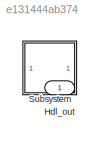
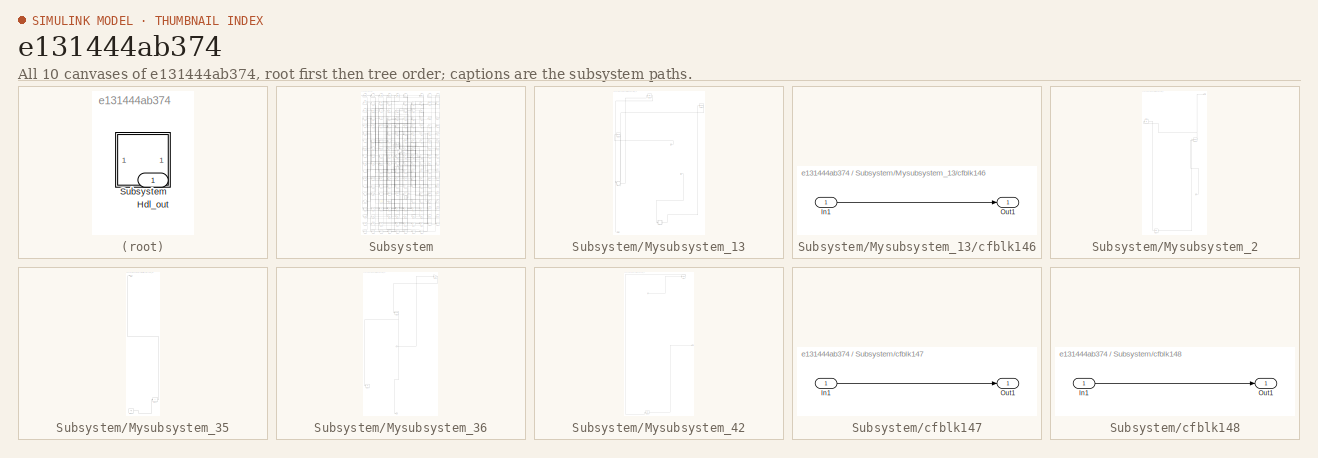
[diagram: thumbnail index - all 10 canvases of the model, root first then tree order]
MODEL slx_e131444ab374
KIND model
CONFIG AbsTol = auto
CONFIG EnableMultiTasking = off
CONFIG FixedStep = auto
CONFIG MaxStep = auto
CONFIG MinStep = auto
CONFIG RelTol = 1e-3
CONFIG SampleTimeConstraint = Unconstrained
CONFIG SolverName = VariableStepAuto
CONFIG StartTime = 0.0
CONFIG StopTime = 10.0
BLOCK [Outport] Hdl_out
  OutDataTypeStr = uint8
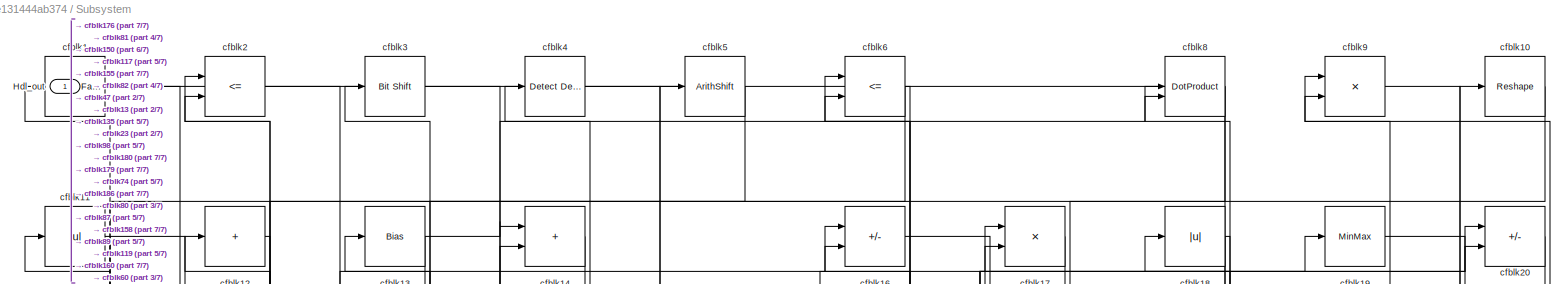
[diagram: Subsystem - part 1/7, full width, top band]
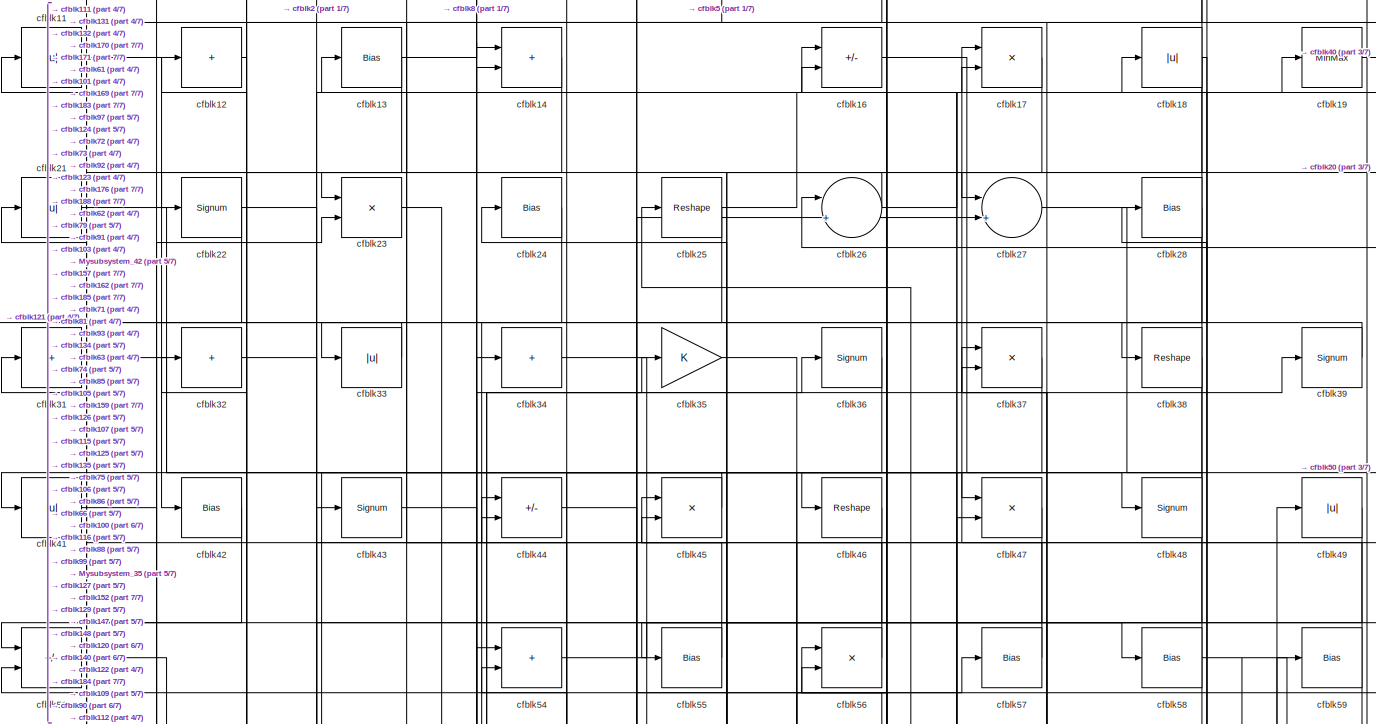
[diagram: Subsystem - part 2/7, full width, top band]
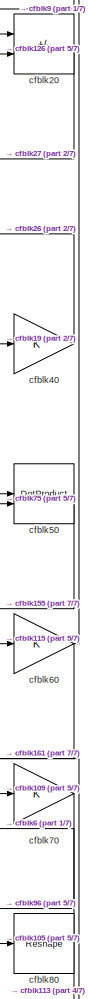
[diagram: Subsystem - part 3/7, top right region]
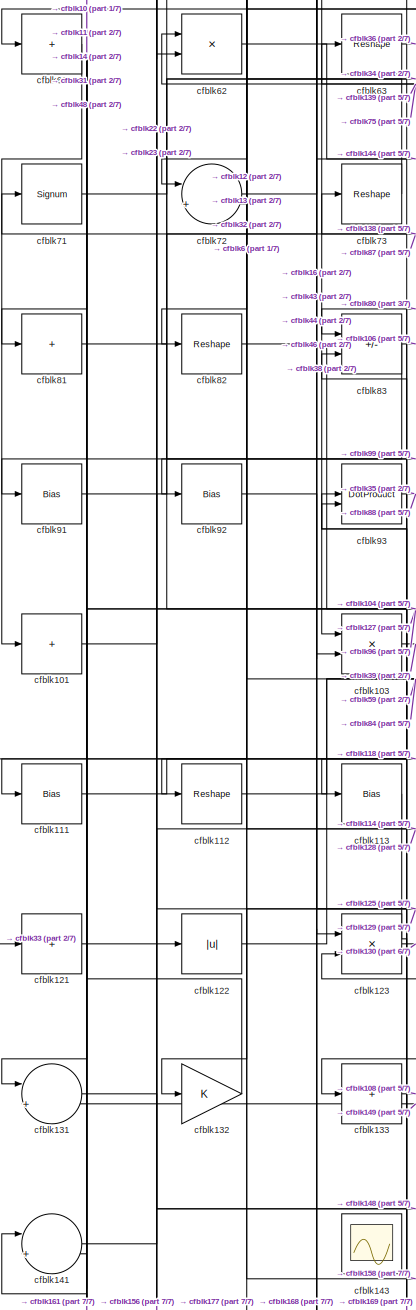
[diagram: Subsystem - part 4/7, middle left region]
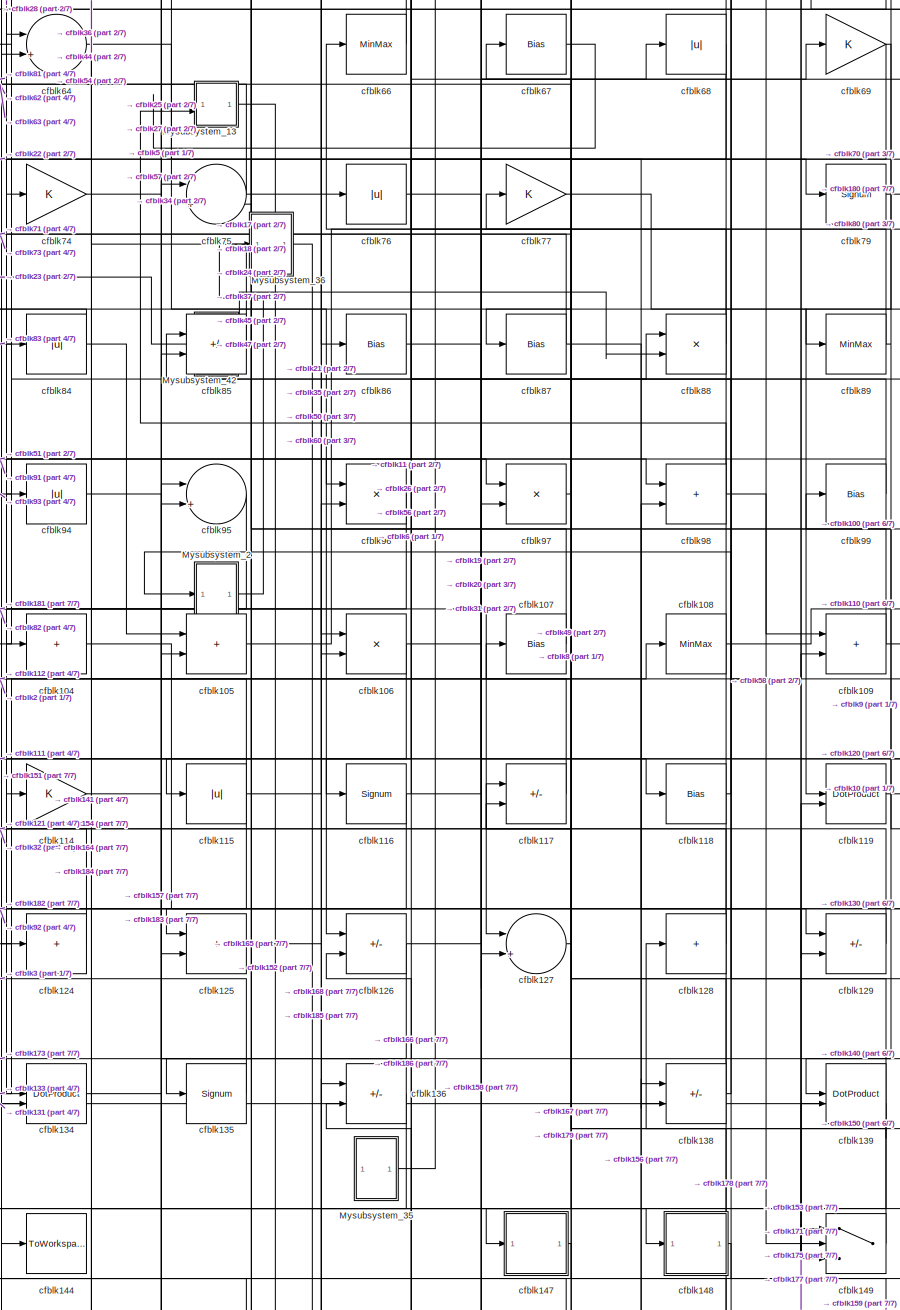
[diagram: Subsystem - part 5/7, central region]
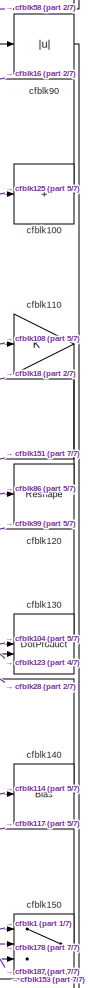
[diagram: Subsystem - part 6/7, middle right region]
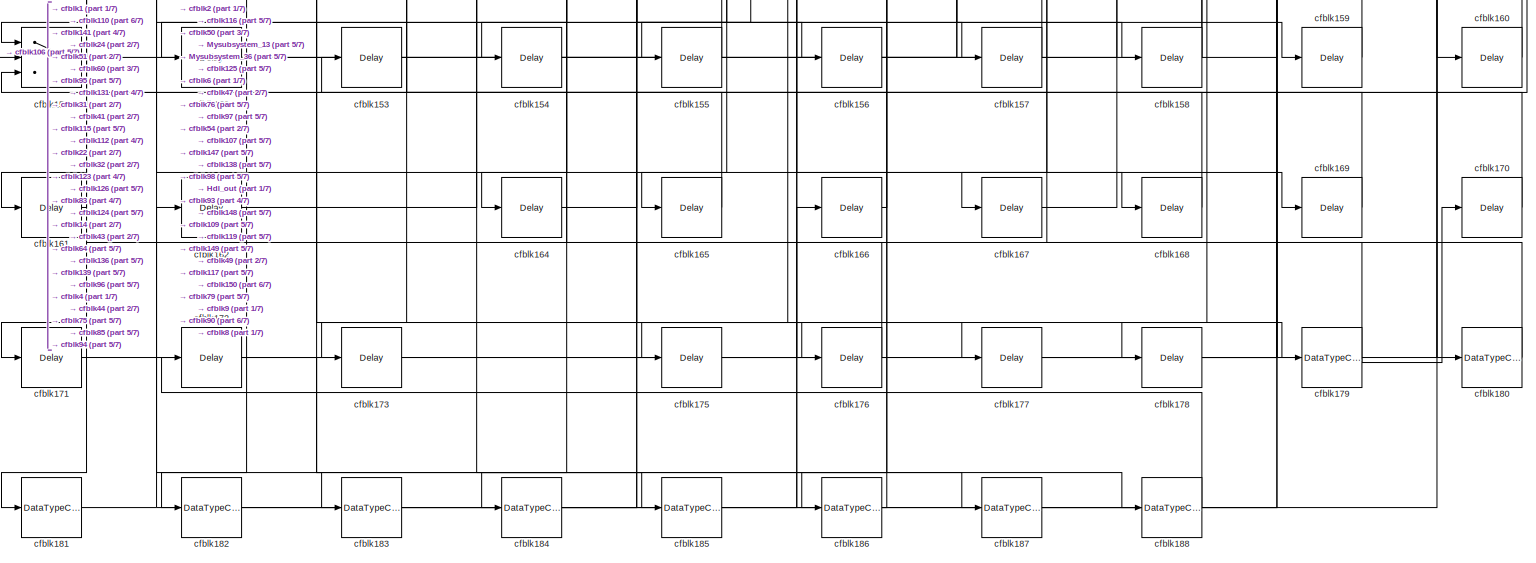
[diagram: Subsystem - part 7/7, full width, bottom band]
BLOCK [SubSystem] Subsystem
BLOCK [Outport] Subsystem/Hdl_out
  OutDataTypeStr = uint8
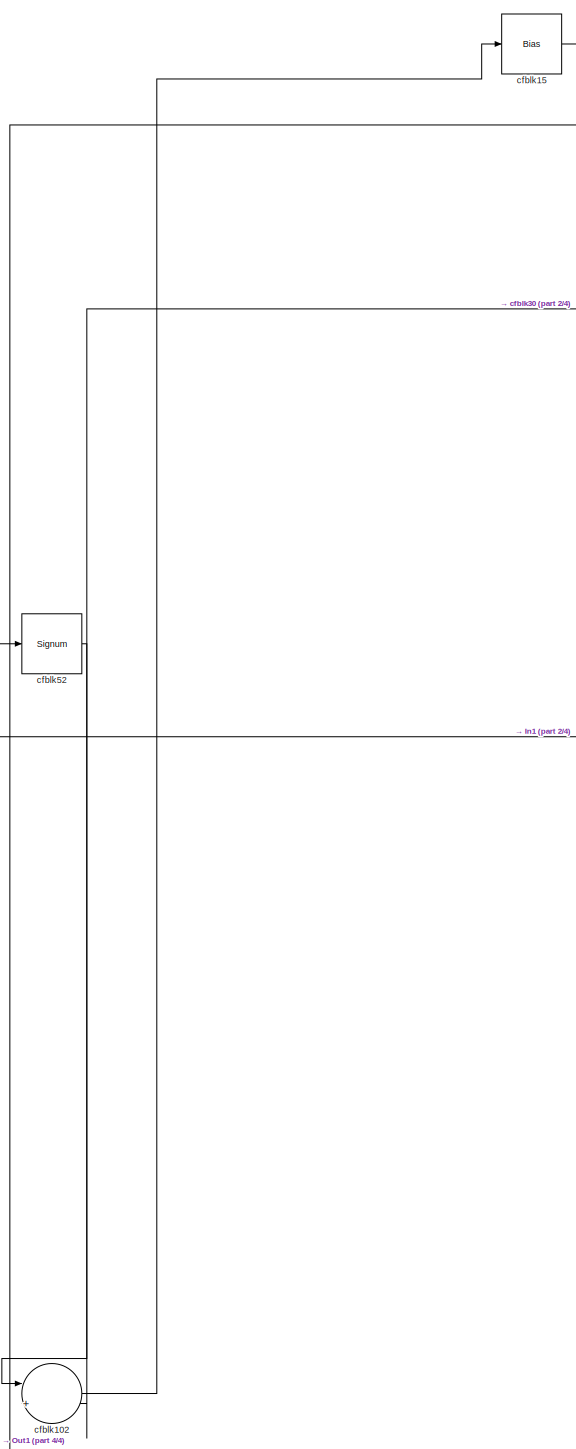
[diagram: Subsystem/Mysubsystem_13 - part 1/4, middle left region]
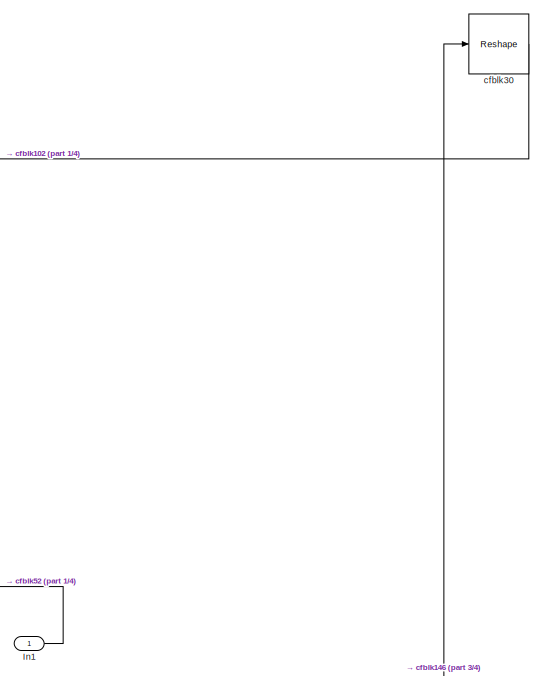
[diagram: Subsystem/Mysubsystem_13 - part 2/4, top right region]
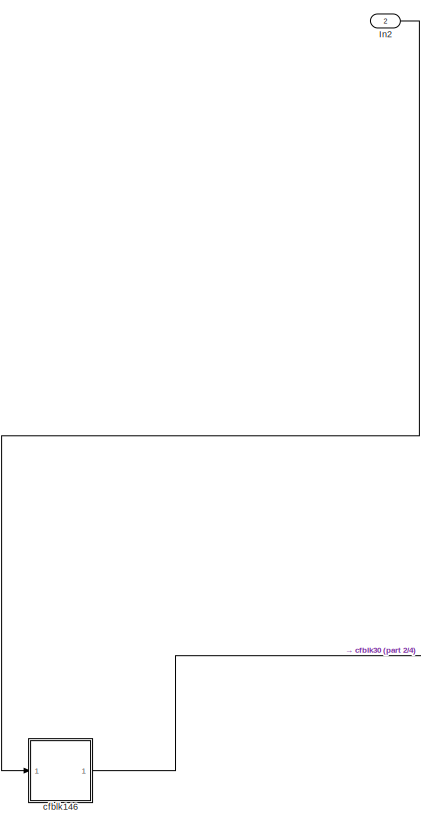
[diagram: Subsystem/Mysubsystem_13 - part 3/4, bottom center region]
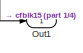
[diagram: Subsystem/Mysubsystem_13 - part 4/4, bottom left region]
BLOCK [SubSystem] Subsystem/Mysubsystem_13
  RTWFcnName = Mysubsystem_13
  RTWFcnNameOpts = User specified
  RTWFileNameOpts = Use function name
  RTWSystemCode = Reusable function
  TreatAsAtomicUnit = on
BLOCK [Inport] Subsystem/Mysubsystem_13/In1
BLOCK [Inport] Subsystem/Mysubsystem_13/In2
  Port = 2
BLOCK [Outport] Subsystem/Mysubsystem_13/Out1
BLOCK [Sum] Subsystem/Mysubsystem_13/cfblk102
  Inputs = |++
BLOCK [SubSystem] Subsystem/Mysubsystem_13/cfblk146
  LibrarySourceBlock = hdlsllib/Ports &\nSubsystems/Subsystem
BLOCK [Inport] Subsystem/Mysubsystem_13/cfblk146/In1
BLOCK [Outport] Subsystem/Mysubsystem_13/cfblk146/Out1
BLOCK [Bias] Subsystem/Mysubsystem_13/cfblk15
  Bias = 0.0
  SaturateOnIntegerOverflow = off
BLOCK [Reshape] Subsystem/Mysubsystem_13/cfblk30
BLOCK [Signum] Subsystem/Mysubsystem_13/cfblk52
BLOCK [SubSystem] Subsystem/Mysubsystem_2
  RTWFcnName = Mysubsystem_2
  RTWFcnNameOpts = User specified
  RTWFileNameOpts = Use function name
  RTWSystemCode = Reusable function
  TreatAsAtomicUnit = on
BLOCK [Inport] Subsystem/Mysubsystem_2/In1
BLOCK [Outport] Subsystem/Mysubsystem_2/Out1
BLOCK [Delay] Subsystem/Mysubsystem_2/cfblk174
  InputPortMap = u0
  SampleTime = 1
BLOCK [Abs] Subsystem/Mysubsystem_2/cfblk53
  SaturateOnIntegerOverflow = off
BLOCK [DotProduct] Subsystem/Mysubsystem_2/cfblk78
  OutDataTypeStr = Inherit: Inherit via internal rule
BLOCK [SubSystem] Subsystem/Mysubsystem_35
  RTWFcnName = Mysubsystem_35
  RTWFcnNameOpts = User specified
  RTWFileNameOpts = Use function name
  RTWSystemCode = Reusable function
  TreatAsAtomicUnit = on
BLOCK [Outport] Subsystem/Mysubsystem_35/Out1
BLOCK [Sum] Subsystem/Mysubsystem_35/cfblk137
  IconShape = rectangular
  Inputs = +
BLOCK [Ground] Subsystem/Mysubsystem_35/cfblk145
BLOCK [SubSystem] Subsystem/Mysubsystem_36
  RTWFcnName = Mysubsystem_36
  RTWFcnNameOpts = User specified
  RTWFileNameOpts = Use function name
  RTWSystemCode = Reusable function
  TreatAsAtomicUnit = on
BLOCK [Inport] Subsystem/Mysubsystem_36/In1
BLOCK [Outport] Subsystem/Mysubsystem_36/Out1
BLOCK [Display] Subsystem/Mysubsystem_36/cfblk142
  Decimation = 1
BLOCK [Gain] Subsystem/Mysubsystem_36/cfblk29
BLOCK [Reshape] Subsystem/Mysubsystem_36/cfblk65
BLOCK [SubSystem] Subsystem/Mysubsystem_42
  RTWFcnName = Mysubsystem_42
  RTWFcnNameOpts = User specified
  RTWFileNameOpts = Use function name
  RTWSystemCode = Reusable function
  TreatAsAtomicUnit = on
BLOCK [Outport] Subsystem/Mysubsystem_42/Out1
BLOCK [Delay] Subsystem/Mysubsystem_42/cfblk163
  InputPortMap = u0
  SampleTime = 1
BLOCK [Reference] Subsystem/Mysubsystem_42/cfblk7  REF=simulink/Logic and Bit
Operations/Extract Bits
  LibrarySourceBlock = hdlsllib/Logic and Bit\nOperations/Extract Bits
  SourceBlock = simulink/Logic and Bit\nOperations/Extract Bits
  SourceType = Extract Bits
BLOCK [Inport] Subsystem/Mysubsystem_42/u
BLOCK [Reference] Subsystem/cfblk1  REF=hdlsllib/Logic and Bit
Operations/Detect Fall
Nonpositive
  SourceBlock = hdlsllib/Logic and Bit\nOperations/Detect Fall\nNonpositive
  SourceType = Detect Fall Nonpositive
BLOCK [Reshape] Subsystem/cfblk10
BLOCK [Sum] Subsystem/cfblk100
  IconShape = rectangular
  Inputs = +
  OutDataTypeStr = uint8
BLOCK [Sum] Subsystem/cfblk101
  IconShape = rectangular
  Inputs = +
  OutDataTypeStr = uint8
BLOCK [Product] Subsystem/cfblk103
  Inputs = */
  OutDataTypeStr = uint8
  RndMeth = Zero
  SaturateOnIntegerOverflow = on
BLOCK [Sum] Subsystem/cfblk104
  IconShape = rectangular
  Inputs = +
  OutDataTypeStr = uint8
BLOCK [Sum] Subsystem/cfblk105
  IconShape = rectangular
  OutDataTypeStr = uint8
BLOCK [Product] Subsystem/cfblk106
  Inputs = */
  OutDataTypeStr = uint8
  RndMeth = Zero
  SaturateOnIntegerOverflow = on
BLOCK [Bias] Subsystem/cfblk107
  Bias = 0.0
  SaturateOnIntegerOverflow = off
BLOCK [MinMax] Subsystem/cfblk108
  OutDataTypeStr = uint8
BLOCK [Sum] Subsystem/cfblk109
  IconShape = rectangular
  OutDataTypeStr = uint8
BLOCK [Abs] Subsystem/cfblk11
  OutDataTypeStr = uint8
  SaturateOnIntegerOverflow = off
BLOCK [Gain] Subsystem/cfblk110
  OutDataTypeStr = uint8
BLOCK [Bias] Subsystem/cfblk111
  Bias = 0.0
  SaturateOnIntegerOverflow = off
BLOCK [Reshape] Subsystem/cfblk112
BLOCK [Bias] Subsystem/cfblk113
  Bias = 0.0
  SaturateOnIntegerOverflow = off
BLOCK [Gain] Subsystem/cfblk114
  OutDataTypeStr = uint8
BLOCK [Abs] Subsystem/cfblk115
  OutDataTypeStr = uint8
  SaturateOnIntegerOverflow = off
BLOCK [Signum] Subsystem/cfblk116
BLOCK [Sum] Subsystem/cfblk117
  IconShape = rectangular
  Inputs = +-
  OutDataTypeStr = uint8
BLOCK [Bias] Subsystem/cfblk118
  Bias = 0.0
  SaturateOnIntegerOverflow = off
BLOCK [DotProduct] Subsystem/cfblk119
  OutDataTypeStr = uint8
BLOCK [Sum] Subsystem/cfblk12
  IconShape = rectangular
  Inputs = +
  OutDataTypeStr = uint8
BLOCK [Reshape] Subsystem/cfblk120
BLOCK [Sum] Subsystem/cfblk121
  IconShape = rectangular
  Inputs = +
  OutDataTypeStr = uint8
BLOCK [Abs] Subsystem/cfblk122
  OutDataTypeStr = uint8
  SaturateOnIntegerOverflow = off
BLOCK [Product] Subsystem/cfblk123
  Inputs = */
  OutDataTypeStr = uint8
  RndMeth = Zero
  SaturateOnIntegerOverflow = on
BLOCK [Sum] Subsystem/cfblk124
  IconShape = rectangular
  Inputs = +
  OutDataTypeStr = uint8
BLOCK [Sum] Subsystem/cfblk125
  IconShape = rectangular
  OutDataTypeStr = uint8
BLOCK [Sum] Subsystem/cfblk126
  IconShape = rectangular
  Inputs = +-
  OutDataTypeStr = uint8
BLOCK [Sum] Subsystem/cfblk127
  Inputs = |++
  OutDataTypeStr = uint8
BLOCK [Sum] Subsystem/cfblk128
  IconShape = rectangular
  Inputs = +
  OutDataTypeStr = uint8
BLOCK [Sum] Subsystem/cfblk129
  IconShape = rectangular
  Inputs = +-
  OutDataTypeStr = uint8
BLOCK [Bias] Subsystem/cfblk13
  Bias = 0.0
  SaturateOnIntegerOverflow = off
BLOCK [DotProduct] Subsystem/cfblk130
  OutDataTypeStr = uint8
BLOCK [Sum] Subsystem/cfblk131
  Inputs = |++
  OutDataTypeStr = uint8
BLOCK [Gain] Subsystem/cfblk132
  OutDataTypeStr = uint8
BLOCK [Sum] Subsystem/cfblk133
  IconShape = rectangular
  Inputs = +
  OutDataTypeStr = uint8
BLOCK [DotProduct] Subsystem/cfblk134
  OutDataTypeStr = uint8
BLOCK [Signum] Subsystem/cfblk135
BLOCK [Sum] Subsystem/cfblk136
  IconShape = rectangular
  Inputs = +-
  OutDataTypeStr = uint8
BLOCK [Sum] Subsystem/cfblk138
  IconShape = rectangular
  Inputs = +-
  OutDataTypeStr = uint8
BLOCK [DotProduct] Subsystem/cfblk139
  OutDataTypeStr = uint8
BLOCK [Sum] Subsystem/cfblk14
  IconShape = rectangular
  OutDataTypeStr = uint8
BLOCK [Bias] Subsystem/cfblk140
  Bias = 0.0
  SaturateOnIntegerOverflow = off
BLOCK [Sum] Subsystem/cfblk141
  Inputs = |++
  OutDataTypeStr = uint8
BLOCK [Scope] Subsystem/cfblk143
  Floating = on
  NumInputPorts = 1
  ScopeSpecificationString = Simulink.scopes.TimeScopeBlockCfg('CurrentConfiguration', extmgr.ConfigurationSet(extmgr.Configuration('Core','General UI',true,'FigureColor',[0.156862745098039 0.156862745098039 0.156862745098039]),extmgr.Configuration('Core','Source UI',true),extmgr.Configuration('Sources','WiredSimulink',true,'DataLoggingSaveFormat','StructureWithTime','DataLoggingLimitDataPoints',true,'DataLoggingDecimation','...<+2674ch>
BLOCK [ToWorkspace] Subsystem/cfblk144
  MaxDataPoints = inf
  SampleTime = -1
  SaveFormat = Timeseries
  VariableName = simout
BLOCK [SubSystem] Subsystem/cfblk147
  LibrarySourceBlock = hdlsllib/Ports &\nSubsystems/Subsystem
BLOCK [Inport] Subsystem/cfblk147/In1
BLOCK [Outport] Subsystem/cfblk147/Out1
BLOCK [SubSystem] Subsystem/cfblk148
  LibrarySourceBlock = hdlsllib/Ports &\nSubsystems/Subsystem
BLOCK [Inport] Subsystem/cfblk148/In1
BLOCK [Outport] Subsystem/cfblk148/Out1
BLOCK [Switch] Subsystem/cfblk149
  InputSameDT = off
  OutDataTypeStr = uint8
  SaturateOnIntegerOverflow = off
BLOCK [Switch] Subsystem/cfblk150
  InputSameDT = off
  OutDataTypeStr = uint8
  SaturateOnIntegerOverflow = off
BLOCK [Switch] Subsystem/cfblk151
  InputSameDT = off
  OutDataTypeStr = uint8
  SaturateOnIntegerOverflow = off
BLOCK [Delay] Subsystem/cfblk152
  InputPortMap = u0
  SampleTime = 1
BLOCK [Delay] Subsystem/cfblk153
  InputPortMap = u0
  SampleTime = 1
BLOCK [Delay] Subsystem/cfblk154
  InputPortMap = u0
  SampleTime = 1
BLOCK [Delay] Subsystem/cfblk155
  InputPortMap = u0
  SampleTime = 1
BLOCK [Delay] Subsystem/cfblk156
  InputPortMap = u0
  SampleTime = 1
BLOCK [Delay] Subsystem/cfblk157
  InputPortMap = u0
  SampleTime = 1
BLOCK [Delay] Subsystem/cfblk158
  InputPortMap = u0
  SampleTime = 1
BLOCK [Delay] Subsystem/cfblk159
  InputPortMap = u0
  SampleTime = 1
BLOCK [Sum] Subsystem/cfblk16
  IconShape = rectangular
  Inputs = +-
  OutDataTypeStr = uint8
BLOCK [Delay] Subsystem/cfblk160
  InputPortMap = u0
  SampleTime = 1
BLOCK [Delay] Subsystem/cfblk161
  InputPortMap = u0
  SampleTime = 1
BLOCK [Delay] Subsystem/cfblk162
  InputPortMap = u0
  SampleTime = 1
BLOCK [Delay] Subsystem/cfblk164
  InputPortMap = u0
  SampleTime = 1
BLOCK [Delay] Subsystem/cfblk165
  InputPortMap = u0
  SampleTime = 1
BLOCK [Delay] Subsystem/cfblk166
  InputPortMap = u0
  SampleTime = 1
BLOCK [Delay] Subsystem/cfblk167
  InputPortMap = u0
  SampleTime = 1
BLOCK [Delay] Subsystem/cfblk168
  InputPortMap = u0
  SampleTime = 1
BLOCK [Delay] Subsystem/cfblk169
  InputPortMap = u0
  SampleTime = 1
BLOCK [Product] Subsystem/cfblk17
  Inputs = */
  OutDataTypeStr = uint8
  RndMeth = Zero
  SaturateOnIntegerOverflow = on
BLOCK [Delay] Subsystem/cfblk170
  InputPortMap = u0
  SampleTime = 1
BLOCK [Delay] Subsystem/cfblk171
  InputPortMap = u0
  SampleTime = 1
BLOCK [Delay] Subsystem/cfblk172
  InputPortMap = u0
  SampleTime = 1
BLOCK [Delay] Subsystem/cfblk173
  InputPortMap = u0
  SampleTime = 1
BLOCK [Delay] Subsystem/cfblk175
  InputPortMap = u0
  SampleTime = 1
BLOCK [Delay] Subsystem/cfblk176
  InputPortMap = u0
  SampleTime = 1
BLOCK [Delay] Subsystem/cfblk177
  InputPortMap = u0
  SampleTime = 1
BLOCK [Delay] Subsystem/cfblk178
  InputPortMap = u0
  SampleTime = 1
BLOCK [DataTypeConversion] Subsystem/cfblk179
  OutDataTypeStr = uint8
  RndMeth = Floor
  SaturateOnIntegerOverflow = off
BLOCK [Abs] Subsystem/cfblk18
  OutDataTypeStr = uint8
  SaturateOnIntegerOverflow = off
BLOCK [DataTypeConversion] Subsystem/cfblk180
  OutDataTypeStr = uint8
  RndMeth = Floor
  SaturateOnIntegerOverflow = off
BLOCK [DataTypeConversion] Subsystem/cfblk181
  OutDataTypeStr = uint8
  RndMeth = Floor
  SaturateOnIntegerOverflow = off
BLOCK [DataTypeConversion] Subsystem/cfblk182
  OutDataTypeStr = uint8
  RndMeth = Floor
  SaturateOnIntegerOverflow = off
BLOCK [DataTypeConversion] Subsystem/cfblk183
  OutDataTypeStr = uint8
  RndMeth = Floor
  SaturateOnIntegerOverflow = off
BLOCK [DataTypeConversion] Subsystem/cfblk184
  OutDataTypeStr = uint8
  RndMeth = Floor
  SaturateOnIntegerOverflow = off
BLOCK [DataTypeConversion] Subsystem/cfblk185
  OutDataTypeStr = uint8
  RndMeth = Floor
  SaturateOnIntegerOverflow = off
BLOCK [DataTypeConversion] Subsystem/cfblk186
  OutDataTypeStr = uint8
  RndMeth = Floor
  SaturateOnIntegerOverflow = off
BLOCK [DataTypeConversion] Subsystem/cfblk187
  OutDataTypeStr = uint8
  RndMeth = Floor
  SaturateOnIntegerOverflow = off
BLOCK [DataTypeConversion] Subsystem/cfblk188
  OutDataTypeStr = uint8
  RndMeth = Floor
  SaturateOnIntegerOverflow = off
BLOCK [MinMax] Subsystem/cfblk19
  OutDataTypeStr = uint8
BLOCK [RelationalOperator] Subsystem/cfblk2
  InputSameDT = off
  Operator = <=
  OutDataTypeStr = boolean
BLOCK [Sum] Subsystem/cfblk20
  IconShape = rectangular
  Inputs = +-
  OutDataTypeStr = uint8
BLOCK [Abs] Subsystem/cfblk21
  OutDataTypeStr = uint8
  SaturateOnIntegerOverflow = off
BLOCK [Signum] Subsystem/cfblk22
BLOCK [Product] Subsystem/cfblk23
  Inputs = */
  OutDataTypeStr = uint8
  RndMeth = Zero
  SaturateOnIntegerOverflow = on
BLOCK [Bias] Subsystem/cfblk24
  Bias = 0.0
  SaturateOnIntegerOverflow = off
BLOCK [Reshape] Subsystem/cfblk25
BLOCK [Sum] Subsystem/cfblk26
  Inputs = |++
  OutDataTypeStr = uint8
BLOCK [Sum] Subsystem/cfblk27
  Inputs = |++
  OutDataTypeStr = uint8
BLOCK [Bias] Subsystem/cfblk28
  Bias = 0.0
  SaturateOnIntegerOverflow = off
BLOCK [Reference] Subsystem/cfblk3  REF=hdlsllib/Logic and Bit
Operations/Bit Shift
  SourceBlock = hdlsllib/Logic and Bit\nOperations/Bit Shift
  SourceType = Bit Shift
BLOCK [Sum] Subsystem/cfblk31
  IconShape = rectangular
  Inputs = +
  OutDataTypeStr = uint8
BLOCK [Sum] Subsystem/cfblk32
  IconShape = rectangular
  Inputs = +
  OutDataTypeStr = uint8
BLOCK [Abs] Subsystem/cfblk33
  OutDataTypeStr = uint8
  SaturateOnIntegerOverflow = off
BLOCK [Sum] Subsystem/cfblk34
  IconShape = rectangular
  Inputs = +
  OutDataTypeStr = uint8
BLOCK [Gain] Subsystem/cfblk35
  OutDataTypeStr = uint8
BLOCK [Signum] Subsystem/cfblk36
BLOCK [Product] Subsystem/cfblk37
  Inputs = */
  OutDataTypeStr = uint8
  RndMeth = Zero
  SaturateOnIntegerOverflow = on
BLOCK [Reshape] Subsystem/cfblk38
BLOCK [Signum] Subsystem/cfblk39
BLOCK [Reference] Subsystem/cfblk4  REF=simulink/Logic and Bit
Operations/Detect
Decrease
  LibrarySourceBlock = hdlsllib/Logic and Bit\nOperations/Detect\nDecrease
  SourceBlock = simulink/Logic and Bit\nOperations/Detect\nDecrease
  SourceType = Detect Decrease
BLOCK [Gain] Subsystem/cfblk40
  OutDataTypeStr = uint8
BLOCK [Abs] Subsystem/cfblk41
  OutDataTypeStr = uint8
  SaturateOnIntegerOverflow = off
BLOCK [Bias] Subsystem/cfblk42
  Bias = 0.0
  SaturateOnIntegerOverflow = off
BLOCK [Signum] Subsystem/cfblk43
BLOCK [Sum] Subsystem/cfblk44
  IconShape = rectangular
  Inputs = +-
  OutDataTypeStr = uint8
BLOCK [Product] Subsystem/cfblk45
  Inputs = */
  OutDataTypeStr = uint8
  RndMeth = Zero
  SaturateOnIntegerOverflow = on
BLOCK [Reshape] Subsystem/cfblk46
BLOCK [Product] Subsystem/cfblk47
  Inputs = */
  OutDataTypeStr = uint8
  RndMeth = Zero
  SaturateOnIntegerOverflow = on
BLOCK [Signum] Subsystem/cfblk48
BLOCK [Abs] Subsystem/cfblk49
  OutDataTypeStr = uint8
  SaturateOnIntegerOverflow = off
BLOCK [ArithShift] Subsystem/cfblk5
  BitShiftNumber = 8
  InputPortMap = u0
BLOCK [DotProduct] Subsystem/cfblk50
  OutDataTypeStr = uint8
BLOCK [Sum] Subsystem/cfblk51
  IconShape = rectangular
  Inputs = +-
  OutDataTypeStr = uint8
BLOCK [Sum] Subsystem/cfblk54
  IconShape = rectangular
  OutDataTypeStr = uint8
BLOCK [Bias] Subsystem/cfblk55
  Bias = 0.0
  SaturateOnIntegerOverflow = off
BLOCK [Product] Subsystem/cfblk56
  Inputs = */
  OutDataTypeStr = uint8
  RndMeth = Zero
  SaturateOnIntegerOverflow = on
BLOCK [Bias] Subsystem/cfblk57
  Bias = 0.0
  SaturateOnIntegerOverflow = off
BLOCK [Bias] Subsystem/cfblk58
  Bias = 0.0
  SaturateOnIntegerOverflow = off
BLOCK [Bias] Subsystem/cfblk59
  Bias = 0.0
  SaturateOnIntegerOverflow = off
BLOCK [RelationalOperator] Subsystem/cfblk6
  InputSameDT = off
  Operator = <=
  OutDataTypeStr = boolean
BLOCK [Gain] Subsystem/cfblk60
  OutDataTypeStr = uint8
BLOCK [Sum] Subsystem/cfblk61
  IconShape = rectangular
  Inputs = +
  OutDataTypeStr = uint8
BLOCK [Product] Subsystem/cfblk62
  Inputs = */
  OutDataTypeStr = uint8
  RndMeth = Zero
  SaturateOnIntegerOverflow = on
BLOCK [Reshape] Subsystem/cfblk63
BLOCK [Sum] Subsystem/cfblk64
  Inputs = |++
  OutDataTypeStr = uint8
BLOCK [MinMax] Subsystem/cfblk66
  OutDataTypeStr = uint8
BLOCK [Bias] Subsystem/cfblk67
  Bias = 0.0
  SaturateOnIntegerOverflow = off
BLOCK [Abs] Subsystem/cfblk68
  OutDataTypeStr = uint8
  SaturateOnIntegerOverflow = off
BLOCK [Gain] Subsystem/cfblk69
  OutDataTypeStr = uint8
BLOCK [Gain] Subsystem/cfblk70
  OutDataTypeStr = uint8
BLOCK [Signum] Subsystem/cfblk71
BLOCK [Sum] Subsystem/cfblk72
  Inputs = |++
  OutDataTypeStr = uint8
BLOCK [Reshape] Subsystem/cfblk73
BLOCK [Gain] Subsystem/cfblk74
  OutDataTypeStr = uint8
BLOCK [Sum] Subsystem/cfblk75
  Inputs = |++
  OutDataTypeStr = uint8
BLOCK [Abs] Subsystem/cfblk76
  OutDataTypeStr = uint8
  SaturateOnIntegerOverflow = off
BLOCK [Gain] Subsystem/cfblk77
  OutDataTypeStr = uint8
BLOCK [Signum] Subsystem/cfblk79
BLOCK [DotProduct] Subsystem/cfblk8
  OutDataTypeStr = uint8
BLOCK [Reshape] Subsystem/cfblk80
BLOCK [Sum] Subsystem/cfblk81
  IconShape = rectangular
  Inputs = +
  OutDataTypeStr = uint8
BLOCK [Reshape] Subsystem/cfblk82
BLOCK [Sum] Subsystem/cfblk83
  IconShape = rectangular
  Inputs = +-
  OutDataTypeStr = uint8
BLOCK [Abs] Subsystem/cfblk84
  OutDataTypeStr = uint8
  SaturateOnIntegerOverflow = off
BLOCK [Sum] Subsystem/cfblk85
  IconShape = rectangular
  Inputs = +-
  OutDataTypeStr = uint8
BLOCK [Bias] Subsystem/cfblk86
  Bias = 0.0
  SaturateOnIntegerOverflow = off
BLOCK [Bias] Subsystem/cfblk87
  Bias = 0.0
  SaturateOnIntegerOverflow = off
BLOCK [Product] Subsystem/cfblk88
  Inputs = */
  OutDataTypeStr = uint8
  RndMeth = Zero
  SaturateOnIntegerOverflow = on
BLOCK [MinMax] Subsystem/cfblk89
  OutDataTypeStr = uint8
BLOCK [Product] Subsystem/cfblk9
  Inputs = */
  OutDataTypeStr = uint8
  RndMeth = Zero
  SaturateOnIntegerOverflow = on
BLOCK [Abs] Subsystem/cfblk90
  OutDataTypeStr = uint8
  SaturateOnIntegerOverflow = off
BLOCK [Bias] Subsystem/cfblk91
  Bias = 0.0
  SaturateOnIntegerOverflow = off
BLOCK [Bias] Subsystem/cfblk92
  Bias = 0.0
  SaturateOnIntegerOverflow = off
BLOCK [DotProduct] Subsystem/cfblk93
  OutDataTypeStr = uint8
BLOCK [Abs] Subsystem/cfblk94
  OutDataTypeStr = uint8
  SaturateOnIntegerOverflow = off
BLOCK [Sum] Subsystem/cfblk95
  Inputs = |++
  OutDataTypeStr = uint8
BLOCK [Product] Subsystem/cfblk96
  Inputs = */
  OutDataTypeStr = uint8
  RndMeth = Zero
  SaturateOnIntegerOverflow = on
BLOCK [Product] Subsystem/cfblk97
  Inputs = */
  OutDataTypeStr = uint8
  RndMeth = Zero
  SaturateOnIntegerOverflow = on
BLOCK [Sum] Subsystem/cfblk98
  IconShape = rectangular
  OutDataTypeStr = uint8
BLOCK [Bias] Subsystem/cfblk99
  Bias = 0.0
  SaturateOnIntegerOverflow = off
LINE Subsystem/Mysubsystem_13/In1:1 -> Subsystem/Mysubsystem_13/cfblk52:1
LINE Subsystem/Mysubsystem_13/In2:1 -> Subsystem/Mysubsystem_13/cfblk146:1
LINE Subsystem/Mysubsystem_13/cfblk102:1 -> Subsystem/Mysubsystem_13/cfblk15:1
LINE Subsystem/Mysubsystem_13/cfblk146/In1:1 -> Subsystem/Mysubsystem_13/cfblk146/Out1:1
LINE Subsystem/Mysubsystem_13/cfblk146:1 -> Subsystem/Mysubsystem_13/cfblk30:1
LINE Subsystem/Mysubsystem_13/cfblk15:1 -> Subsystem/Mysubsystem_13/Out1:1
LINE Subsystem/Mysubsystem_13/cfblk30:1 -> Subsystem/Mysubsystem_13/cfblk102:2
LINE Subsystem/Mysubsystem_13/cfblk52:1 -> Subsystem/Mysubsystem_13/cfblk102:1
LINE Subsystem/Mysubsystem_13:1 -> Subsystem/cfblk152:1
LINE Subsystem/Mysubsystem_2/In1:1 -> Subsystem/Mysubsystem_2/cfblk78:2
LINE Subsystem/Mysubsystem_2/cfblk174:1 -> Subsystem/Mysubsystem_2/cfblk78:1
LINE Subsystem/Mysubsystem_2/cfblk53:1 -> Subsystem/Mysubsystem_2/cfblk174:1
NET Subsystem/Mysubsystem_2/cfblk78:1 -> Subsystem/Mysubsystem_2/Out1:1, Subsystem/Mysubsystem_2/cfblk53:1
LINE Subsystem/Mysubsystem_2:1 -> Subsystem/Mysubsystem_36:1
LINE Subsystem/Mysubsystem_35/cfblk137:1 -> Subsystem/Mysubsystem_35/Out1:1
LINE Subsystem/Mysubsystem_35/cfblk145:1 -> Subsystem/Mysubsystem_35/cfblk137:1
LINE Subsystem/Mysubsystem_35:1 -> Subsystem/cfblk25:1
LINE Subsystem/Mysubsystem_36/In1:1 -> Subsystem/Mysubsystem_36/cfblk29:1
LINE Subsystem/Mysubsystem_36/cfblk29:1 -> Subsystem/Mysubsystem_36/cfblk65:1
NET Subsystem/Mysubsystem_36/cfblk65:1 -> Subsystem/Mysubsystem_36/Out1:1, Subsystem/Mysubsystem_36/cfblk142:1
LINE Subsystem/Mysubsystem_36:1 -> Subsystem/cfblk175:1
LINE Subsystem/Mysubsystem_42/cfblk163:1 -> Subsystem/Mysubsystem_42/Out1:1
LINE Subsystem/Mysubsystem_42/cfblk7:1 -> Subsystem/Mysubsystem_42/cfblk163:1
LINE Subsystem/Mysubsystem_42/u:1 -> Subsystem/Mysubsystem_42/cfblk7:1
LINE Subsystem/Mysubsystem_42:1 -> Subsystem/cfblk88:2
LINE Subsystem/cfblk100:1 -> Subsystem/cfblk16:1
LINE Subsystem/cfblk101:1 -> Subsystem/cfblk23:2
LINE Subsystem/cfblk103:1 -> Subsystem/cfblk39:1
LINE Subsystem/cfblk104:1 -> Subsystem/cfblk130:1
LINE Subsystem/cfblk105:1 -> Subsystem/cfblk80:1
NET Subsystem/cfblk106:1 -> Subsystem/cfblk151:2, Subsystem/cfblk68:1
LINE Subsystem/cfblk107:1 -> Subsystem/cfblk24:1
LINE Subsystem/cfblk108:1 -> Subsystem/cfblk110:1
NET Subsystem/cfblk109:1 -> Subsystem/cfblk45:2, Subsystem/cfblk70:1
LINE Subsystem/cfblk10:1 -> Subsystem/cfblk81:1
LINE Subsystem/cfblk110:1 -> Subsystem/cfblk151:1
LINE Subsystem/cfblk111:1 -> Subsystem/cfblk118:1
NET Subsystem/cfblk112:1 -> Subsystem/cfblk177:1, Subsystem/cfblk84:1
LINE Subsystem/cfblk113:1 -> Subsystem/cfblk133:1
LINE Subsystem/cfblk114:1 -> Subsystem/cfblk140:1
NET Subsystem/cfblk115:1 -> Subsystem/cfblk182:1, Subsystem/cfblk44:1, Subsystem/cfblk60:1, Subsystem/cfblk76:1
NET Subsystem/cfblk116:1 -> Subsystem/cfblk165:1, Subsystem/cfblk19:1, Subsystem/cfblk56:1
LINE Subsystem/cfblk117:1 -> Subsystem/cfblk2:1
LINE Subsystem/cfblk118:1 -> Subsystem/cfblk85:1
LINE Subsystem/cfblk119:1 -> Subsystem/cfblk10:1
NET Subsystem/cfblk11:1 -> Subsystem/cfblk42:1, Subsystem/cfblk61:1
LINE Subsystem/cfblk120:1 -> Subsystem/cfblk18:1
LINE Subsystem/cfblk121:1 -> Subsystem/cfblk114:1
LINE Subsystem/cfblk122:1 -> Subsystem/cfblk59:1
LINE Subsystem/cfblk123:1 -> Subsystem/cfblk130:2
NET Subsystem/cfblk124:1 -> Subsystem/cfblk32:1, Subsystem/cfblk64:1
NET Subsystem/cfblk125:1 -> Subsystem/cfblk100:1, Subsystem/cfblk168:1
NET Subsystem/cfblk126:1 -> Subsystem/cfblk173:1, Subsystem/cfblk20:2, Subsystem/cfblk69:1
LINE Subsystem/cfblk127:1 -> Subsystem/cfblk67:1
LINE Subsystem/cfblk128:1 -> Subsystem/cfblk93:1
NET Subsystem/cfblk129:1 -> Subsystem/cfblk37:2, Subsystem/cfblk94:1
LINE Subsystem/cfblk12:1 -> Subsystem/cfblk72:1
LINE Subsystem/cfblk130:1 -> Subsystem/cfblk99:1
LINE Subsystem/cfblk131:1 -> Subsystem/cfblk156:1
LINE Subsystem/cfblk132:1 -> Subsystem/cfblk31:1
LINE Subsystem/cfblk133:1 -> Subsystem/cfblk108:1
LINE Subsystem/cfblk134:1 -> Subsystem/cfblk27:2
LINE Subsystem/cfblk135:1 -> Subsystem/cfblk3:1
LINE Subsystem/cfblk136:1 -> Subsystem/cfblk184:1
NET Subsystem/cfblk138:1 -> Subsystem/Mysubsystem_2:1, Subsystem/cfblk71:1
NET Subsystem/cfblk139:1 -> Subsystem/cfblk164:1, Subsystem/cfblk63:1
NET Subsystem/cfblk13:1 -> Subsystem/cfblk8:1, Subsystem/cfblk92:1
LINE Subsystem/cfblk140:1 -> Subsystem/cfblk28:1
NET Subsystem/cfblk141:1 -> Subsystem/cfblk122:1, Subsystem/cfblk148:1
LINE Subsystem/cfblk147/In1:1 -> Subsystem/cfblk147/Out1:1
LINE Subsystem/cfblk147:1 -> Subsystem/cfblk167:1
LINE Subsystem/cfblk148/In1:1 -> Subsystem/cfblk148/Out1:1
NET Subsystem/cfblk148:1 -> Subsystem/cfblk178:1, Subsystem/cfblk37:1
NET Subsystem/cfblk149:1 -> Subsystem/cfblk128:1, Subsystem/cfblk131:2
LINE Subsystem/cfblk14:1 -> Subsystem/cfblk111:1
LINE Subsystem/cfblk150:1 -> Subsystem/cfblk117:1
NET Subsystem/cfblk151:1 -> Subsystem/cfblk124:1, Subsystem/cfblk64:2, Subsystem/cfblk75:1
LINE Subsystem/cfblk152:1 -> Subsystem/cfblk47:2
LINE Subsystem/cfblk153:1 -> Subsystem/cfblk149:1
LINE Subsystem/cfblk154:1 -> Subsystem/cfblk97:2
LINE Subsystem/cfblk155:1 -> Subsystem/cfblk2:2
LINE Subsystem/cfblk156:1 -> Subsystem/cfblk98:2
LINE Subsystem/cfblk157:1 -> Subsystem/cfblk54:1
NET Subsystem/cfblk158:1 -> Subsystem/Hdl_out:1, Subsystem/cfblk93:2
LINE Subsystem/cfblk159:1 -> Subsystem/cfblk117:2
LINE Subsystem/cfblk160:1 -> Subsystem/cfblk8:2
LINE Subsystem/cfblk161:1 -> Subsystem/cfblk141:1
LINE Subsystem/cfblk162:1 -> Subsystem/cfblk14:2
LINE Subsystem/cfblk164:1 -> Subsystem/cfblk85:2
LINE Subsystem/cfblk165:1 -> Subsystem/cfblk151:3
LINE Subsystem/cfblk166:1 -> Subsystem/cfblk126:2
LINE Subsystem/cfblk167:1 -> Subsystem/cfblk138:1
LINE Subsystem/cfblk168:1 -> Subsystem/cfblk83:2
LINE Subsystem/cfblk169:1 -> Subsystem/cfblk123:2
LINE Subsystem/cfblk16:1 -> Subsystem/cfblk48:1
LINE Subsystem/cfblk170:1 -> Subsystem/cfblk51:2
LINE Subsystem/cfblk171:1 -> Subsystem/cfblk119:2
LINE Subsystem/cfblk172:1 -> Subsystem/cfblk187:1
LINE Subsystem/cfblk173:1 -> Subsystem/cfblk96:2
LINE Subsystem/cfblk175:1 -> Subsystem/cfblk149:3
LINE Subsystem/cfblk176:1 -> Subsystem/cfblk1:1
LINE Subsystem/cfblk177:1 -> Subsystem/cfblk109:2
LINE Subsystem/cfblk178:1 -> Subsystem/cfblk150:2
NET Subsystem/cfblk179:1 -> Subsystem/cfblk107:1, Subsystem/cfblk170:1
LINE Subsystem/cfblk17:1 -> Subsystem/cfblk75:2
LINE Subsystem/cfblk180:1 -> Subsystem/cfblk4:1
NET Subsystem/cfblk181:1 -> Subsystem/cfblk139:2, Subsystem/cfblk162:1
LINE Subsystem/cfblk182:1 -> Subsystem/cfblk95:1
LINE Subsystem/cfblk183:1 -> Subsystem/cfblk95:2
NET Subsystem/cfblk184:1 -> Subsystem/cfblk166:1, Subsystem/cfblk49:1
LINE Subsystem/cfblk185:1 -> Subsystem/cfblk136:1
LINE Subsystem/cfblk186:1 -> Subsystem/cfblk136:2
LINE Subsystem/cfblk187:1 -> Subsystem/cfblk150:3
LINE Subsystem/cfblk188:1 -> Subsystem/cfblk172:1
NET Subsystem/cfblk18:1 -> Subsystem/cfblk125:1, Subsystem/cfblk38:1, Subsystem/cfblk55:1
LINE Subsystem/cfblk19:1 -> Subsystem/cfblk40:1
LINE Subsystem/cfblk1:1 -> Subsystem/cfblk150:1
LINE Subsystem/cfblk20:1 -> Subsystem/cfblk27:1
LINE Subsystem/cfblk21:1 -> Subsystem/cfblk86:1
NET Subsystem/cfblk22:1 -> Subsystem/cfblk123:1, Subsystem/cfblk188:1, Subsystem/cfblk62:2, Subsystem/cfblk79:1
LINE Subsystem/cfblk23:1 -> Subsystem/Mysubsystem_42:1
LINE Subsystem/cfblk24:1 -> Subsystem/cfblk171:1
NET Subsystem/cfblk25:1 -> Subsystem/cfblk105:2, Subsystem/cfblk17:2
NET Subsystem/cfblk26:1 -> Subsystem/cfblk20:1, Subsystem/cfblk22:1
LINE Subsystem/cfblk27:1 -> Subsystem/cfblk50:1
LINE Subsystem/cfblk28:1 -> Subsystem/cfblk134:1
LINE Subsystem/cfblk2:1 -> Subsystem/cfblk47:1
NET Subsystem/cfblk31:1 -> Subsystem/cfblk127:2, Subsystem/cfblk183:1
NET Subsystem/cfblk32:1 -> Subsystem/cfblk176:1, Subsystem/cfblk72:2
LINE Subsystem/cfblk33:1 -> Subsystem/cfblk121:1
LINE Subsystem/cfblk34:1 -> Subsystem/cfblk126:1
LINE Subsystem/cfblk35:1 -> Subsystem/cfblk106:1
LINE Subsystem/cfblk36:1 -> Subsystem/cfblk74:1
LINE Subsystem/cfblk37:1 -> Subsystem/cfblk115:1
LINE Subsystem/cfblk38:1 -> Subsystem/cfblk103:1
LINE Subsystem/cfblk39:1 -> Subsystem/cfblk33:1
LINE Subsystem/cfblk3:1 -> Subsystem/cfblk98:1
LINE Subsystem/cfblk40:1 -> Subsystem/cfblk26:1
LINE Subsystem/cfblk41:1 -> Subsystem/cfblk169:1
LINE Subsystem/cfblk42:1 -> Subsystem/cfblk51:1
LINE Subsystem/cfblk43:1 -> Subsystem/cfblk185:1
LINE Subsystem/cfblk44:1 -> Subsystem/cfblk159:1
LINE Subsystem/cfblk45:1 -> Subsystem/cfblk41:1
LINE Subsystem/cfblk46:1 -> Subsystem/cfblk103:2
LINE Subsystem/cfblk47:1 -> Subsystem/cfblk135:1
NET Subsystem/cfblk48:1 -> Subsystem/cfblk131:1, Subsystem/cfblk46:1
LINE Subsystem/cfblk49:1 -> Subsystem/cfblk147:1
LINE Subsystem/cfblk4:1 -> Subsystem/cfblk179:1
LINE Subsystem/cfblk50:1 -> Subsystem/cfblk155:1
LINE Subsystem/cfblk51:1 -> Subsystem/cfblk97:1
LINE Subsystem/cfblk54:1 -> Subsystem/cfblk58:1
LINE Subsystem/cfblk55:1 -> Subsystem/cfblk45:1
LINE Subsystem/cfblk56:1 -> Subsystem/cfblk21:1
LINE Subsystem/cfblk57:1 -> Subsystem/cfblk17:1
NET Subsystem/cfblk58:1 -> Subsystem/cfblk109:1, Subsystem/cfblk90:1
NET Subsystem/cfblk59:1 -> Subsystem/cfblk112:1, Subsystem/cfblk13:1
LINE Subsystem/cfblk5:1 -> Subsystem/cfblk23:1
NET Subsystem/cfblk60:1 -> Subsystem/cfblk161:1, Subsystem/cfblk9:1
LINE Subsystem/cfblk61:1 -> Subsystem/cfblk101:1
NET Subsystem/cfblk62:1 -> Subsystem/cfblk144:1, Subsystem/cfblk44:2
LINE Subsystem/cfblk63:1 -> Subsystem/cfblk36:1
LINE Subsystem/cfblk64:1 -> Subsystem/cfblk138:2
LINE Subsystem/cfblk66:1 -> Subsystem/cfblk11:1
LINE Subsystem/cfblk67:1 -> Subsystem/Mysubsystem_13:1
LINE Subsystem/cfblk68:1 -> Subsystem/cfblk134:2
NET Subsystem/cfblk69:1 -> Subsystem/cfblk116:1, Subsystem/cfblk89:1
NET Subsystem/cfblk6:1 -> Subsystem/cfblk186:1, Subsystem/cfblk82:1
LINE Subsystem/cfblk70:1 -> Subsystem/cfblk96:1
LINE Subsystem/cfblk71:1 -> Subsystem/cfblk34:1
LINE Subsystem/cfblk72:1 -> Subsystem/cfblk16:2
LINE Subsystem/cfblk73:1 -> Subsystem/cfblk12:1
NET Subsystem/cfblk74:1 -> Subsystem/cfblk57:1, Subsystem/cfblk5:1
NET Subsystem/cfblk75:1 -> Subsystem/cfblk50:2, Subsystem/cfblk62:1
LINE Subsystem/cfblk76:1 -> Subsystem/cfblk158:1
LINE Subsystem/cfblk77:1 -> Subsystem/cfblk119:1
LINE Subsystem/cfblk79:1 -> Subsystem/cfblk180:1
NET Subsystem/cfblk80:1 -> Subsystem/cfblk113:1, Subsystem/cfblk6:1
NET Subsystem/cfblk81:1 -> Subsystem/cfblk104:1, Subsystem/cfblk14:1
LINE Subsystem/cfblk82:1 -> Subsystem/cfblk127:1
NET Subsystem/cfblk83:1 -> Subsystem/cfblk106:2, Subsystem/cfblk132:1
NET Subsystem/cfblk84:1 -> Subsystem/cfblk105:1, Subsystem/cfblk83:1
LINE Subsystem/cfblk85:1 -> Subsystem/cfblk54:2
LINE Subsystem/cfblk86:1 -> Subsystem/cfblk120:1
NET Subsystem/cfblk87:1 -> Subsystem/cfblk129:2, Subsystem/cfblk73:1
NET Subsystem/cfblk88:1 -> Subsystem/cfblk26:2, Subsystem/cfblk66:1
NET Subsystem/cfblk89:1 -> Subsystem/cfblk139:1, Subsystem/cfblk6:2, Subsystem/cfblk9:2
LINE Subsystem/cfblk8:1 -> Subsystem/cfblk87:1
LINE Subsystem/cfblk90:1 -> Subsystem/cfblk153:1
NET Subsystem/cfblk91:1 -> Subsystem/cfblk125:2, Subsystem/cfblk43:1
LINE Subsystem/cfblk92:1 -> Subsystem/cfblk129:1
NET Subsystem/cfblk93:1 -> Subsystem/cfblk35:1, Subsystem/cfblk88:1
LINE Subsystem/cfblk94:1 -> Subsystem/cfblk157:1
LINE Subsystem/cfblk95:1 -> Subsystem/cfblk181:1
NET Subsystem/cfblk96:1 -> Subsystem/cfblk141:2, Subsystem/cfblk154:1
LINE Subsystem/cfblk97:1 -> Subsystem/cfblk77:1
NET Subsystem/cfblk98:1 -> Subsystem/Mysubsystem_13:2, Subsystem/cfblk149:2
NET Subsystem/cfblk99:1 -> Subsystem/cfblk56:2, Subsystem/cfblk91:1
LINE Subsystem/cfblk9:1 -> Subsystem/cfblk160:1
note: NET lines group one-source signal fan-out (src -> all destinations, sorted); 1:1 wires keep LINE
